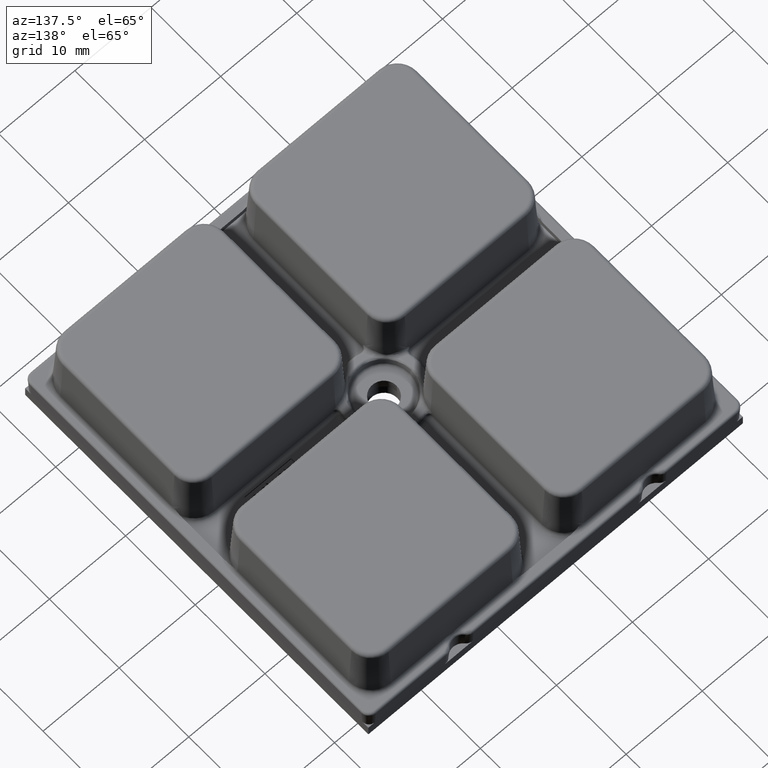
[diagram: clean part render]
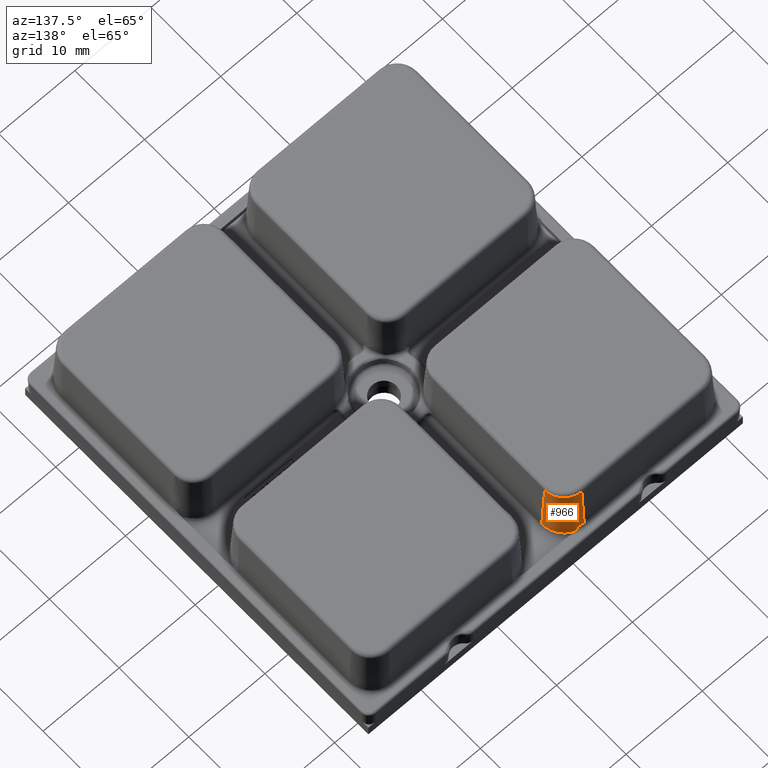
[diagram: same view with one face highlighted and labeled with its STEP entity id]
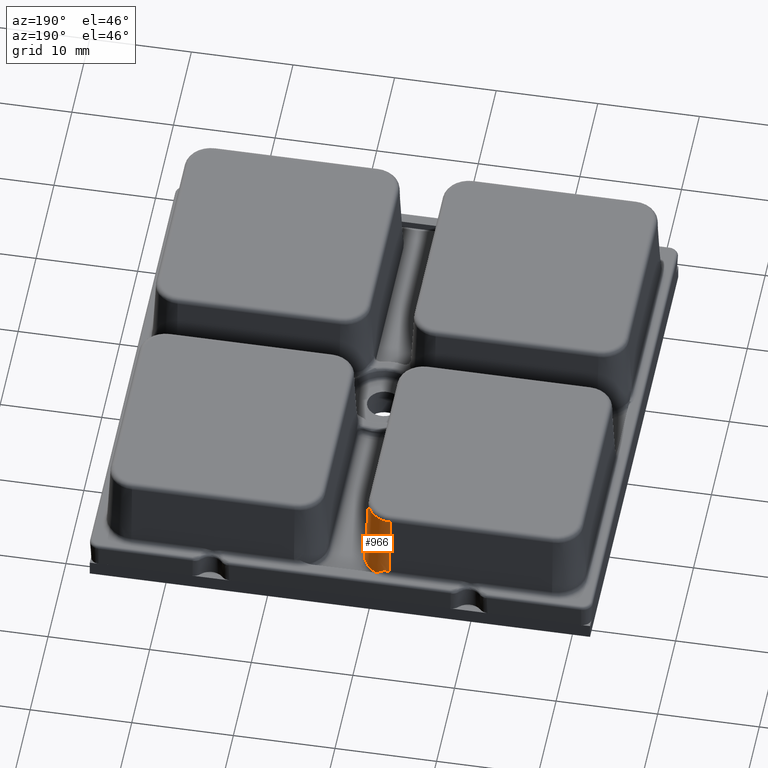
[diagram: same view with one face highlighted and labeled with its STEP entity id]
A machine part, auxiliary view. The second image highlights one B-rep face of the part: STEP entity #966.
A second angle (auxiliary view) of the same face is appended — the face is thin or edge-on in the first view.
In plain terms, the highlighted conical surface has half-angle 3 deg.
Its self-contained STEP definition (entity closure, byte-faithful):
#376=CONICAL_SURFACE('',#8149,2.59571013358433,3.);
#626=B_SPLINE_CURVE_WITH_KNOTS('',3,(#12067,#12068,#12069,#12070),
 .UNSPECIFIED.,.F.,.F.,(4,4),(0.,1.),.UNSPECIFIED.);
#966=ADVANCED_FACE('',(#1570),#376,.T.);
#1570=FACE_OUTER_BOUND('',#2060,.T.);
#2060=EDGE_LOOP('',(#3846,#3847,#3848,#3849,#3850,#3851));
#2637=CIRCLE('',#8146,2.88918298555565);
#2638=CIRCLE('',#8147,2.54578960897253);
#2639=CIRCLE('',#8148,2.92586843105377);
#3846=ORIENTED_EDGE('',*,*,#6121,.T.);
#3847=ORIENTED_EDGE('',*,*,#6393,.T.);
#3848=ORIENTED_EDGE('',*,*,#6370,.F.);
#3849=ORIENTED_EDGE('',*,*,#6394,.T.);
#3850=ORIENTED_EDGE('',*,*,#6395,.T.);
#3851=ORIENTED_EDGE('',*,*,#6396,.T.);
#5414=VERTEX_POINT('',#12066);
#5415=VERTEX_POINT('',#12071);
#5539=VERTEX_POINT('',#13022);
#5540=VERTEX_POINT('',#13023);
#5557=VERTEX_POINT('',#13106);
#5558=VERTEX_POINT('',#13108);
#6121=EDGE_CURVE('',#5415,#5414,#626,.T.);
#6370=EDGE_CURVE('',#5539,#5540,#7076,.T.);
#6393=EDGE_CURVE('',#5414,#5540,#2637,.T.);
#6394=EDGE_CURVE('',#5539,#5557,#2638,.T.);
#6395=EDGE_CURVE('',#5557,#5558,#7085,.T.);
#6396=EDGE_CURVE('',#5558,#5415,#2639,.T.);
#7076=LINE('',#13021,#7490);
#7085=LINE('',#13107,#7499);
#7490=VECTOR('',#9677,1.);
#7499=VECTOR('',#9710,1.);
#8146=AXIS2_PLACEMENT_3D('',#13104,#9706,#9707);
#8147=AXIS2_PLACEMENT_3D('',#13105,#9708,#9709);
#8148=AXIS2_PLACEMENT_3D('',#13109,#9711,#9712);
#8149=AXIS2_PLACEMENT_3D('',#13110,#9713,#9714);
#9677=DIRECTION('',(0.,0.0523359562429438,-0.998629534754574));
#9706=DIRECTION('',(0.,0.,1.));
#9707=DIRECTION('',(-1.,0.,0.));
#9708=DIRECTION('',(0.,0.,-1.));
#9709=DIRECTION('',(-1.,0.,0.));
#9710=DIRECTION('',(0.0523359562429438,-3.65701222270063E-16,-0.998629534754574));
#9711=DIRECTION('',(0.,0.,1.));
#9712=DIRECTION('',(-1.,0.,0.));
#9713=DIRECTION('',(0.,0.,-1.));
#9714=DIRECTION('',(-1.,0.,0.));
#12066=CARTESIAN_POINT('',(8.55546276873516,10.8352847187848,2.28483202187858));
#12067=CARTESIAN_POINT('',(8.85355034028354,10.7985992732865,1.58483202187602));
#12068=CARTESIAN_POINT('',(8.76946004744558,10.8111376090364,1.82407772015616));
#12069=CARTESIAN_POINT('',(8.67599424521386,10.8235891776267,2.06166780240454));
#12070=CARTESIAN_POINT('',(8.555462768736,10.8352847187848,2.28483202187887));
#12071=CARTESIAN_POINT('',(8.85355034028354,10.7985992732865,1.58483202187602));
#13021=CARTESIAN_POINT('',(7.99999999999998,10.5957101335843,7.88462762448061));
#13022=CARTESIAN_POINT('',(7.99999999999998,10.5457896089725,8.83716797812147));
#13023=CARTESIAN_POINT('',(7.99999999999998,10.8891829855556,2.28483202187853));
#13104=CARTESIAN_POINT('',(8.,8.,2.28483202187853));
#13105=CARTESIAN_POINT('',(8.,8.,8.83716797812147));
#13106=CARTESIAN_POINT('',(10.5457896089725,7.99999999999998,8.83716797812147));
#13107=CARTESIAN_POINT('',(10.5957101335843,7.99999999999998,7.88462762448061));
#13108=CARTESIAN_POINT('',(10.9258684310538,7.99999999999998,1.58483202187853));
#13109=CARTESIAN_POINT('',(8.,8.,1.58483202187853));
#13110=CARTESIAN_POINT('',(8.,8.,7.88462762448061));